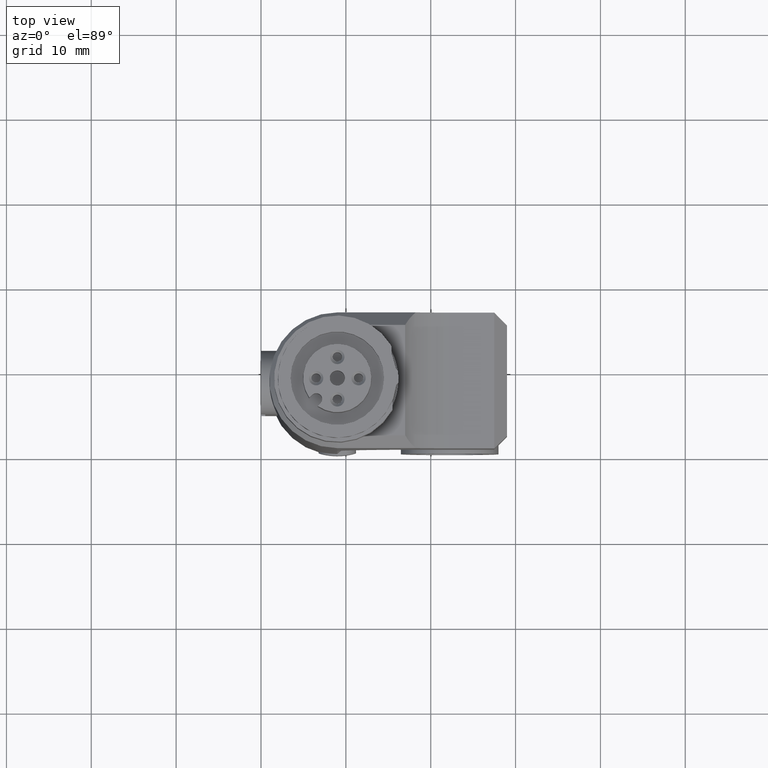
[diagram: clean part render]
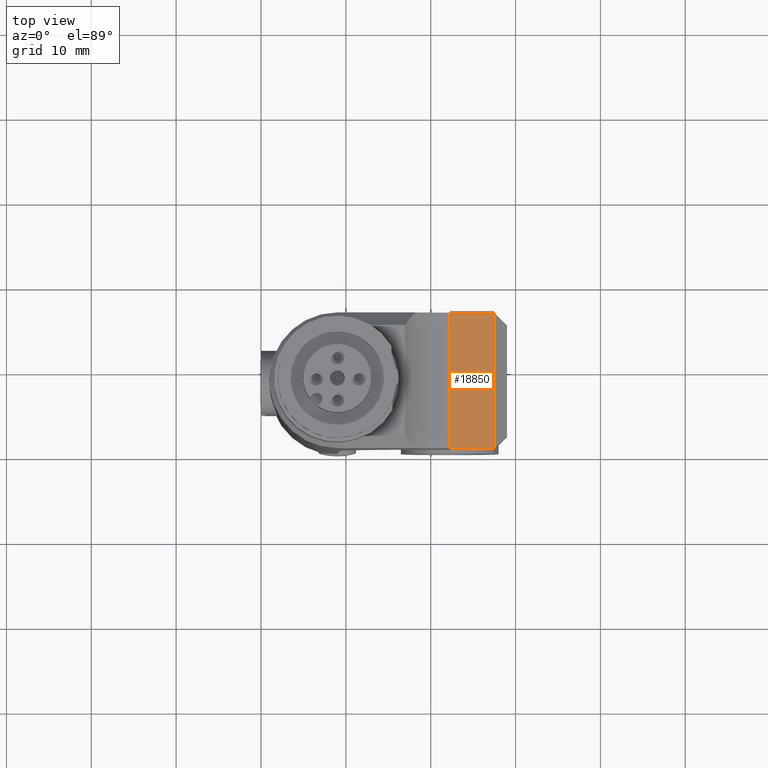
[diagram: same view with one face highlighted and labeled with its STEP entity id]
A machine part, top view. The second image highlights one B-rep face of the part: STEP entity #18850.
In plain terms, the highlighted planar face has unit normal (-0, 0, -1).
Its self-contained STEP definition (entity closure, byte-faithful):
#9870=CARTESIAN_POINT('',(8.,18.5,47.));
#9880=VERTEX_POINT('',#9870);
#10950=CARTESIAN_POINT('',(-7.99999999999999,18.5,47.));
#10960=VERTEX_POINT('',#10950);
#11060=CARTESIAN_POINT('',(0.,18.5,47.));
#11070=DIRECTION('',(-1.,0.,0.));
#11080=VECTOR('',#11070,1.);
#11090=LINE('',#11060,#11080);
#11100=EDGE_CURVE('',#9880,#10960,#11090,.T.);
#18550=CARTESIAN_POINT('',(8.,13.1961524227066,47.));
#18560=DIRECTION('',(-0.,-0.,-1.));
#18570=DIRECTION('',(0.,-1.,0.));
#18580=AXIS2_PLACEMENT_3D('',#18550,#18560,#18570);
#18590=PLANE('',#18580);
#18600=CARTESIAN_POINT('',(8.,13.1961524227066,47.));
#18610=DIRECTION('',(-1.,0.,0.));
#18620=VECTOR('',#18610,1.);
#18630=LINE('',#18600,#18620);
#18640=CARTESIAN_POINT('',(8.,13.1961524227066,47.));
#18650=VERTEX_POINT('',#18640);
#18660=CARTESIAN_POINT('',(-7.99999999999999,13.1961524227066,47.));
#18670=VERTEX_POINT('',#18660);
#18680=EDGE_CURVE('',#18650,#18670,#18630,.T.);
#18690=ORIENTED_EDGE('',*,*,#18680,.F.);
#18700=CARTESIAN_POINT('',(-8.,0.,47.));
#18710=DIRECTION('',(0.,-1.,0.));
#18720=VECTOR('',#18710,1.);
#18730=LINE('',#18700,#18720);
#18740=EDGE_CURVE('',#10960,#18670,#18730,.T.);
#18750=ORIENTED_EDGE('',*,*,#18740,.T.);
#18760=ORIENTED_EDGE('',*,*,#11100,.T.);
#18770=CARTESIAN_POINT('',(8.,0.,47.));
#18780=DIRECTION('',(0.,-1.,0.));
#18790=VECTOR('',#18780,1.);
#18800=LINE('',#18770,#18790);
#18810=EDGE_CURVE('',#9880,#18650,#18800,.T.);
#18820=ORIENTED_EDGE('',*,*,#18810,.F.);
#18830=EDGE_LOOP('',(#18820,#18760,#18750,#18690));
#18840=FACE_OUTER_BOUND('',#18830,.T.);
#18850=ADVANCED_FACE('',(#18840),#18590,.F.);